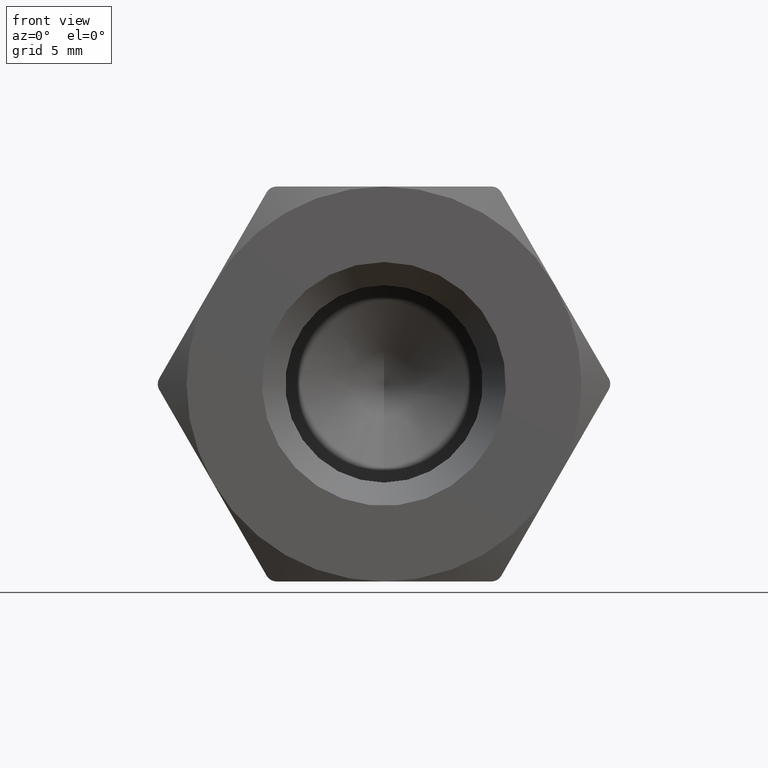
[diagram: clean part render]
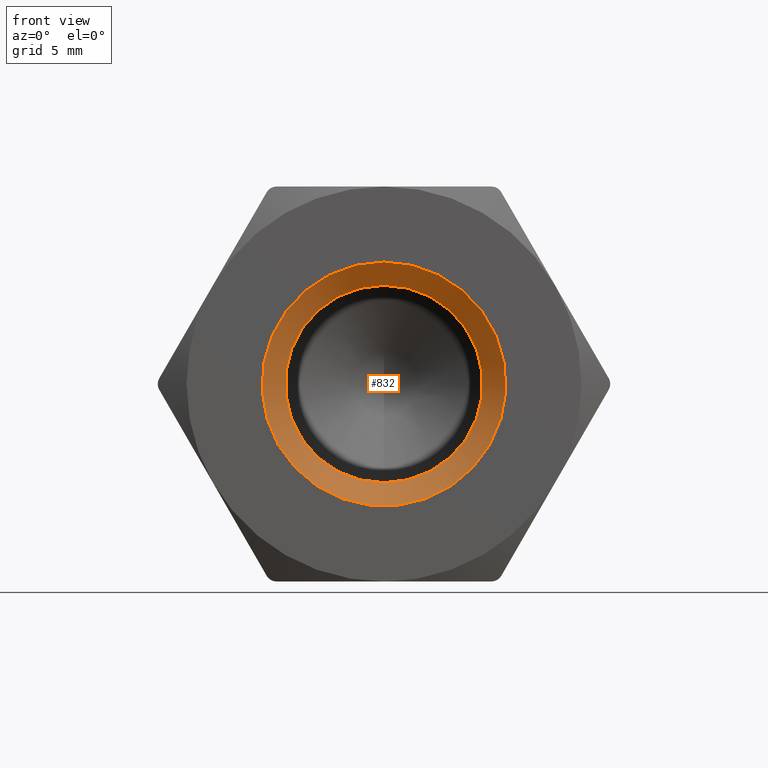
[diagram: same view with one face highlighted and labeled with its STEP entity id]
A machine part, front view. The second image highlights one B-rep face of the part: STEP entity #832.
In plain terms, the highlighted conical surface has half-angle 45 deg.
Its self-contained STEP definition (entity closure, byte-faithful):
#95 = CARTESIAN_POINT ( 'NONE',  ( 0.0000000000000000000, 1.000000000000003600, 4.249999999999998200 ) ) ;
#206 = EDGE_LOOP ( 'NONE', ( #560 ) ) ;
#258 = DIRECTION ( 'NONE',  ( 0.0000000000000000000, 0.0000000000000000000, 1.000000000000000000 ) ) ;
#298 = CONICAL_SURFACE ( 'NONE', #724, 4.249999999999998200, 0.7853981633974496100 ) ;
#305 = AXIS2_PLACEMENT_3D ( 'NONE', #430, #337, #258 ) ;
#337 = DIRECTION ( 'NONE',  ( 0.0000000000000000000, 1.000000000000000000, 0.0000000000000000000 ) ) ;
#338 = EDGE_CURVE ( 'NONE', #757, #757, #759, .T. ) ;
#351 = ORIENTED_EDGE ( 'NONE', *, *, #338, .F. ) ;
#430 = CARTESIAN_POINT ( 'NONE',  ( 0.0000000000000000000, 0.0000000000000000000, 0.0000000000000000000 ) ) ;
#523 = DIRECTION ( 'NONE',  ( 0.0000000000000000000, 0.0000000000000000000, 1.000000000000000000 ) ) ;
#540 = VERTEX_POINT ( 'NONE', #95 ) ;
#560 = ORIENTED_EDGE ( 'NONE', *, *, #833, .F. ) ;
#724 = AXIS2_PLACEMENT_3D ( 'NONE', #1271, #1153, #949 ) ;
#734 = CARTESIAN_POINT ( 'NONE',  ( 0.0000000000000000000, 1.000000000000003600, 0.0000000000000000000 ) ) ;
#741 = FACE_BOUND ( 'NONE', #206, .T. ) ;
#757 = VERTEX_POINT ( 'NONE', #947 ) ;
#759 = CIRCLE ( 'NONE', #305, 5.250000000000004400 ) ;
#832 = ADVANCED_FACE ( 'NONE', ( #878, #741 ), #298, .F. ) ;
#833 = EDGE_CURVE ( 'NONE', #540, #540, #860, .T. ) ;
#860 = CIRCLE ( 'NONE', #1228, 4.249999999999998200 ) ;
#878 = FACE_OUTER_BOUND ( 'NONE', #1000, .T. ) ;
#947 = CARTESIAN_POINT ( 'NONE',  ( 0.0000000000000000000, 0.0000000000000000000, 5.250000000000004400 ) ) ;
#949 = DIRECTION ( 'NONE',  ( 0.0000000000000000000, 0.0000000000000000000, -1.000000000000000000 ) ) ;
#1000 = EDGE_LOOP ( 'NONE', ( #351 ) ) ;
#1073 = DIRECTION ( 'NONE',  ( 0.0000000000000000000, -1.000000000000000000, 0.0000000000000000000 ) ) ;
#1153 = DIRECTION ( 'NONE',  ( 0.0000000000000000000, -1.000000000000000000, 0.0000000000000000000 ) ) ;
#1228 = AXIS2_PLACEMENT_3D ( 'NONE', #734, #1073, #523 ) ;
#1271 = CARTESIAN_POINT ( 'NONE',  ( 0.0000000000000000000, 1.000000000000003600, 0.0000000000000000000 ) ) ;